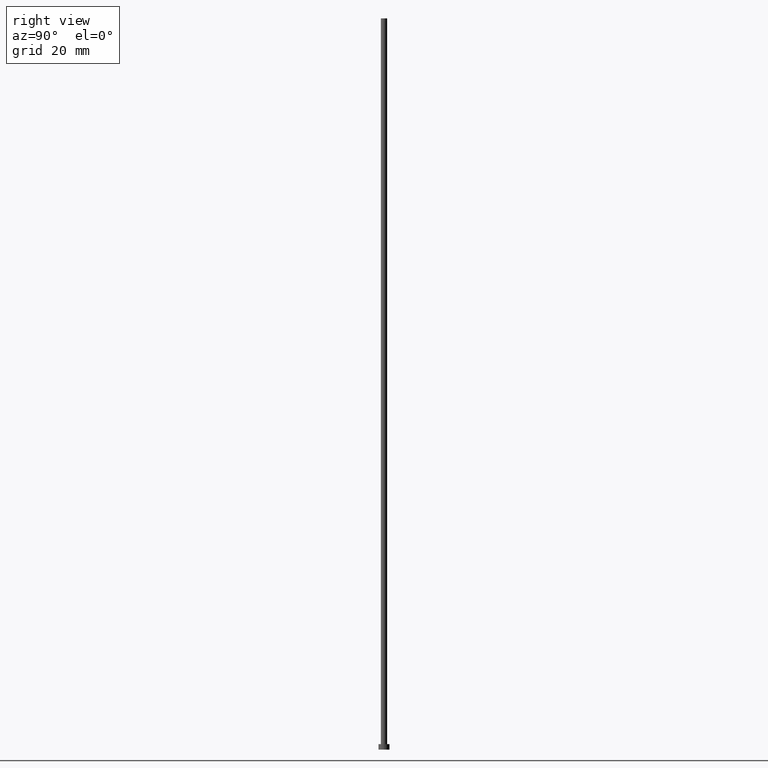
[diagram: clean part render]
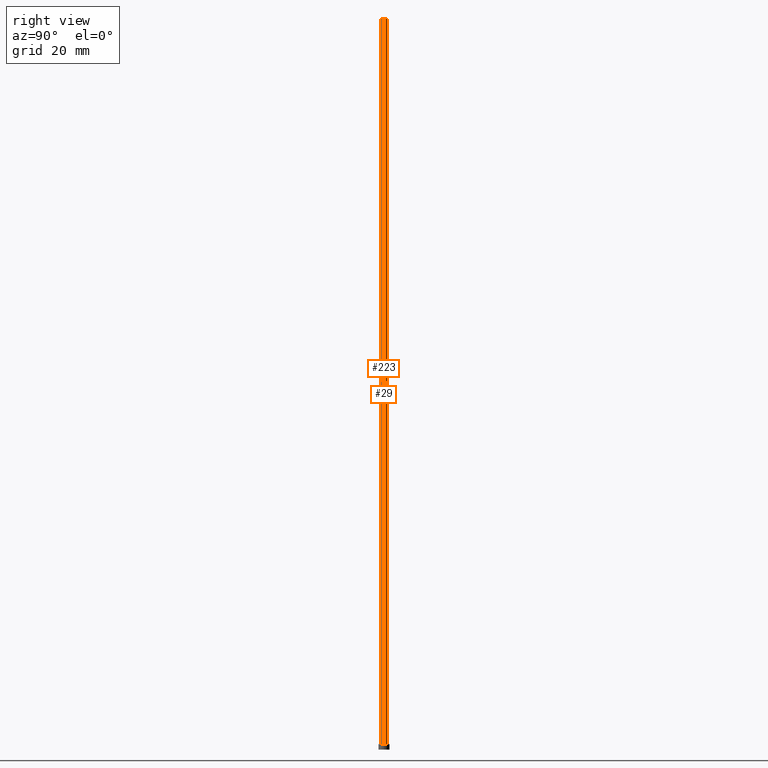
[diagram: same view with one multi-face feature highlighted, each face labeled with its STEP entity id]
A machine part, right view. The highlighted faces form ONE feature: a constant-radius fillet chain: 2 tangent blend faces with common blend radius 0.85 mm. The faces share edges in the B-rep.
Their STEP definitions:
[1] entity #223 (Cylinder):
#23 = EDGE_CURVE ( 'NONE', #92, #161, #209, .T. ) ;
#39 = DIRECTION ( 'NONE',  ( -0.000000000000000000, -0.000000000000000000, -1.000000000000000000 ) ) ;
#43 = DIRECTION ( 'NONE',  ( -0.000000000000000000, -0.000000000000000000, -1.000000000000000000 ) ) ;
#45 = VERTEX_POINT ( 'NONE', #93 ) ;
#47 = EDGE_CURVE ( 'NONE', #151, #45, #62, .T. ) ;
#49 = ORIENTED_EDGE ( 'NONE', *, *, #23, .T. ) ;
#57 = CARTESIAN_POINT ( 'NONE',  ( -0.8499999999999999778, 0.000000000000000000, 1.500000000000000000 ) ) ;
#62 = LINE ( 'NONE', #133, #249 ) ;
#69 = AXIS2_PLACEMENT_3D ( 'NONE', #86, #83, #162 ) ;
#70 = FACE_OUTER_BOUND ( 'NONE', #88, .T. ) ;
#74 = VECTOR ( 'NONE', #43, 1000.000000000000000 ) ;
#83 = DIRECTION ( 'NONE',  ( 0.000000000000000000, 0.000000000000000000, 1.000000000000000000 ) ) ;
#86 = CARTESIAN_POINT ( 'NONE',  ( 0.000000000000000000, 0.000000000000000000, 1.500000000000000000 ) ) ;
#88 = EDGE_LOOP ( 'NONE', ( #211, #112, #49, #206 ) ) ;
#92 = VERTEX_POINT ( 'NONE', #253 ) ;
#93 = CARTESIAN_POINT ( 'NONE',  ( 0.8499999999999999778, 1.040949779275250140E-16, 1.500000000000000000 ) ) ;
#112 = ORIENTED_EDGE ( 'NONE', *, *, #208, .F. ) ;
#123 = CIRCLE ( 'NONE', #69, 0.8499999999999999778 ) ;
#124 = CARTESIAN_POINT ( 'NONE',  ( 0.000000000000000000, 0.000000000000000000, 200.0000000000000000 ) ) ;
#129 = DIRECTION ( 'NONE',  ( 0.000000000000000000, 0.000000000000000000, 1.000000000000000000 ) ) ;
#133 = CARTESIAN_POINT ( 'NONE',  ( 0.8499999999999999778, 1.040949779275250140E-16, 200.0000000000000000 ) ) ;
#148 = CYLINDRICAL_SURFACE ( 'NONE', #167, 0.8499999999999999778 ) ;
#150 = CARTESIAN_POINT ( 'NONE',  ( 0.000000000000000000, 0.000000000000000000, 200.0000000000000000 ) ) ;
#151 = VERTEX_POINT ( 'NONE', #165 ) ;
#153 = DIRECTION ( 'NONE',  ( -0.000000000000000000, -0.000000000000000000, -1.000000000000000000 ) ) ;
#161 = VERTEX_POINT ( 'NONE', #57 ) ;
#162 = DIRECTION ( 'NONE',  ( 1.000000000000000000, 0.000000000000000000, 0.000000000000000000 ) ) ;
#165 = CARTESIAN_POINT ( 'NONE',  ( 0.8499999999999999778, 1.040949779275250140E-16, 200.0000000000000000 ) ) ;
#167 = AXIS2_PLACEMENT_3D ( 'NONE', #124, #39, #189 ) ;
#185 = EDGE_CURVE ( 'NONE', #161, #45, #123, .T. ) ;
#189 = DIRECTION ( 'NONE',  ( -1.000000000000000000, 0.000000000000000000, 0.000000000000000000 ) ) ;
#204 = DIRECTION ( 'NONE',  ( 1.000000000000000000, 0.000000000000000000, 0.000000000000000000 ) ) ;
#206 = ORIENTED_EDGE ( 'NONE', *, *, #185, .T. ) ;
#208 = EDGE_CURVE ( 'NONE', #92, #151, #226, .T. ) ;
#209 = LINE ( 'NONE', #235, #74 ) ;
#211 = ORIENTED_EDGE ( 'NONE', *, *, #47, .F. ) ;
#220 = AXIS2_PLACEMENT_3D ( 'NONE', #150, #129, #204 ) ;
#223 = ADVANCED_FACE ( 'NONE', ( #70 ), #148, .T. ) ;
#226 = CIRCLE ( 'NONE', #220, 0.8499999999999999778 ) ;
#235 = CARTESIAN_POINT ( 'NONE',  ( -0.8499999999999999778, 0.000000000000000000, 200.0000000000000000 ) ) ;
#249 = VECTOR ( 'NONE', #153, 1000.000000000000000 ) ;
#253 = CARTESIAN_POINT ( 'NONE',  ( -0.8499999999999999778, 0.000000000000000000, 200.0000000000000000 ) ) ;
[2] entity #29 (Cylinder):
#2 = AXIS2_PLACEMENT_3D ( 'NONE', #27, #94, #178 ) ;
#3 = AXIS2_PLACEMENT_3D ( 'NONE', #37, #103, #71 ) ;
#10 = ORIENTED_EDGE ( 'NONE', *, *, #155, .T. ) ;
#20 = CYLINDRICAL_SURFACE ( 'NONE', #2, 0.8499999999999999778 ) ;
#23 = EDGE_CURVE ( 'NONE', #92, #161, #209, .T. ) ;
#26 = AXIS2_PLACEMENT_3D ( 'NONE', #188, #225, #36 ) ;
#27 = CARTESIAN_POINT ( 'NONE',  ( 0.000000000000000000, 0.000000000000000000, 200.0000000000000000 ) ) ;
#29 = ADVANCED_FACE ( 'NONE', ( #192 ), #20, .T. ) ;
#36 = DIRECTION ( 'NONE',  ( 1.000000000000000000, 0.000000000000000000, 0.000000000000000000 ) ) ;
#37 = CARTESIAN_POINT ( 'NONE',  ( 0.000000000000000000, 0.000000000000000000, 1.500000000000000000 ) ) ;
#43 = DIRECTION ( 'NONE',  ( -0.000000000000000000, -0.000000000000000000, -1.000000000000000000 ) ) ;
#44 = ORIENTED_EDGE ( 'NONE', *, *, #47, .T. ) ;
#45 = VERTEX_POINT ( 'NONE', #93 ) ;
#47 = EDGE_CURVE ( 'NONE', #151, #45, #62, .T. ) ;
#57 = CARTESIAN_POINT ( 'NONE',  ( -0.8499999999999999778, 0.000000000000000000, 1.500000000000000000 ) ) ;
#58 = ORIENTED_EDGE ( 'NONE', *, *, #139, .F. ) ;
#62 = LINE ( 'NONE', #133, #249 ) ;
#71 = DIRECTION ( 'NONE',  ( 1.000000000000000000, 0.000000000000000000, 0.000000000000000000 ) ) ;
#74 = VECTOR ( 'NONE', #43, 1000.000000000000000 ) ;
#92 = VERTEX_POINT ( 'NONE', #253 ) ;
#93 = CARTESIAN_POINT ( 'NONE',  ( 0.8499999999999999778, 1.040949779275250140E-16, 1.500000000000000000 ) ) ;
#94 = DIRECTION ( 'NONE',  ( -0.000000000000000000, -0.000000000000000000, -1.000000000000000000 ) ) ;
#103 = DIRECTION ( 'NONE',  ( 0.000000000000000000, 0.000000000000000000, 1.000000000000000000 ) ) ;
#106 = CIRCLE ( 'NONE', #26, 0.8499999999999999778 ) ;
#119 = ORIENTED_EDGE ( 'NONE', *, *, #23, .F. ) ;
#133 = CARTESIAN_POINT ( 'NONE',  ( 0.8499999999999999778, 1.040949779275250140E-16, 200.0000000000000000 ) ) ;
#139 = EDGE_CURVE ( 'NONE', #151, #92, #106, .T. ) ;
#146 = CIRCLE ( 'NONE', #3, 0.8499999999999999778 ) ;
#151 = VERTEX_POINT ( 'NONE', #165 ) ;
#153 = DIRECTION ( 'NONE',  ( -0.000000000000000000, -0.000000000000000000, -1.000000000000000000 ) ) ;
#155 = EDGE_CURVE ( 'NONE', #45, #161, #146, .T. ) ;
#161 = VERTEX_POINT ( 'NONE', #57 ) ;
#165 = CARTESIAN_POINT ( 'NONE',  ( 0.8499999999999999778, 1.040949779275250140E-16, 200.0000000000000000 ) ) ;
#178 = DIRECTION ( 'NONE',  ( -1.000000000000000000, 0.000000000000000000, 0.000000000000000000 ) ) ;
#188 = CARTESIAN_POINT ( 'NONE',  ( 0.000000000000000000, 0.000000000000000000, 200.0000000000000000 ) ) ;
#192 = FACE_OUTER_BOUND ( 'NONE', #255, .T. ) ;
#209 = LINE ( 'NONE', #235, #74 ) ;
#225 = DIRECTION ( 'NONE',  ( 0.000000000000000000, 0.000000000000000000, 1.000000000000000000 ) ) ;
#235 = CARTESIAN_POINT ( 'NONE',  ( -0.8499999999999999778, 0.000000000000000000, 200.0000000000000000 ) ) ;
#249 = VECTOR ( 'NONE', #153, 1000.000000000000000 ) ;
#253 = CARTESIAN_POINT ( 'NONE',  ( -0.8499999999999999778, 0.000000000000000000, 200.0000000000000000 ) ) ;
#255 = EDGE_LOOP ( 'NONE', ( #58, #44, #10, #119 ) ) ;